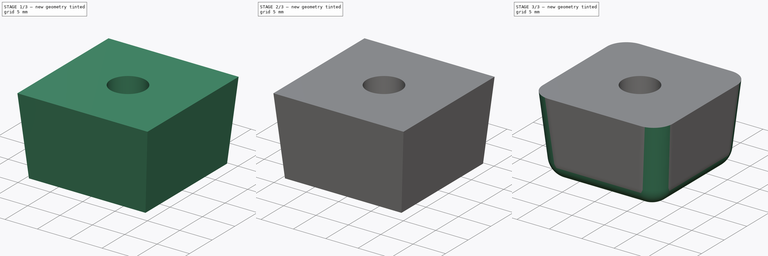
[diagram: build sequence overview — one tinted view per stage of 3, left to right]
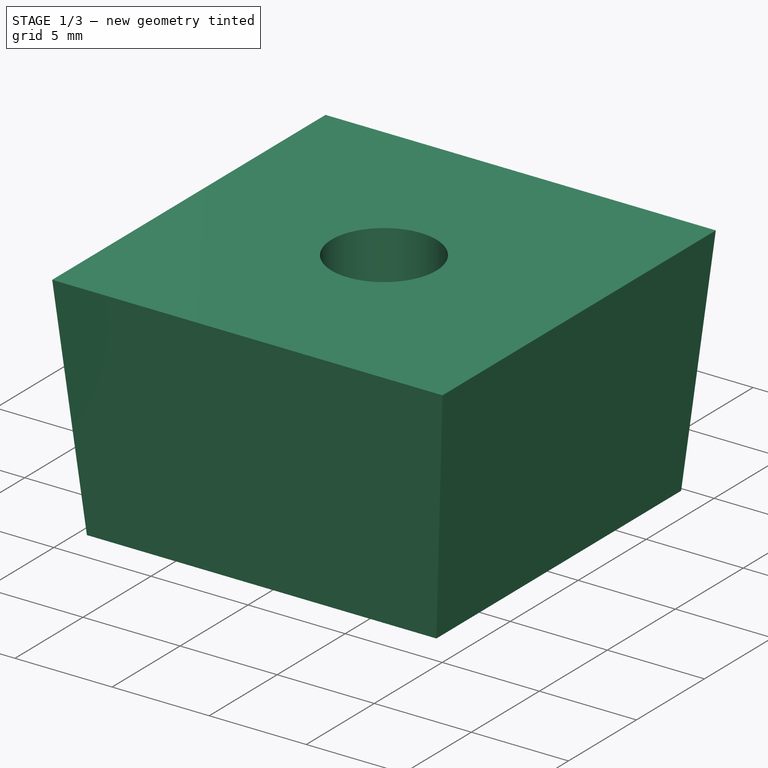
[diagram: stage 1 of 3 — iso view after this stage's code; geometry added in this stage tinted green]
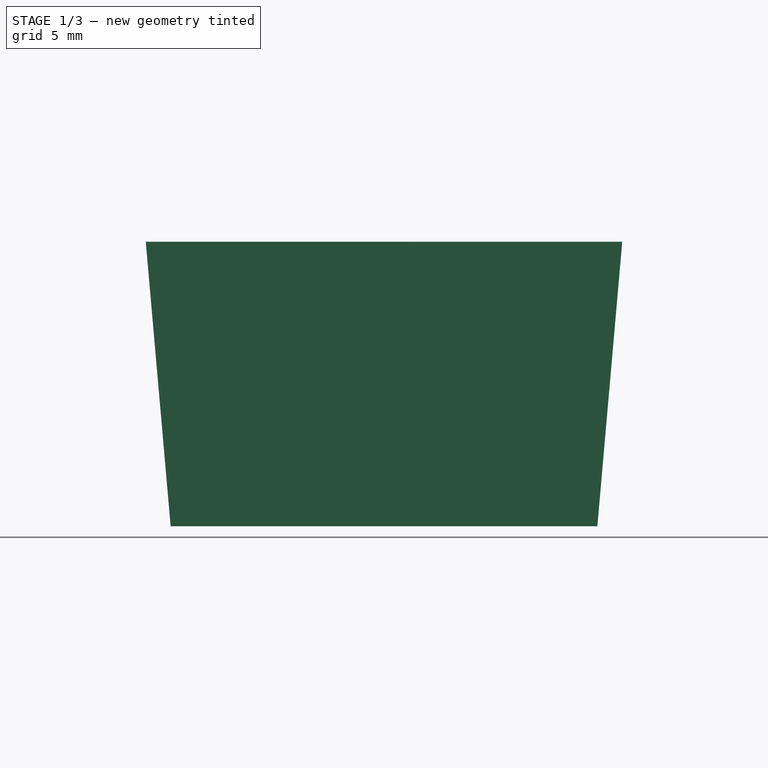
[diagram: stage 1 of 3 — front view after this stage's code; geometry added in this stage tinted green]
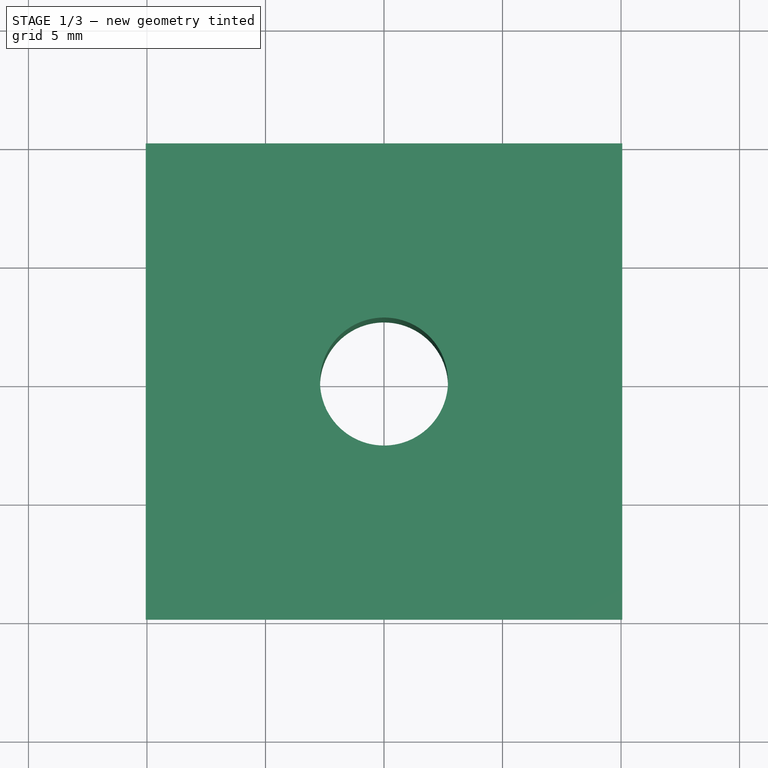
[diagram: stage 1 of 3 — top view after this stage's code; geometry added in this stage tinted green]
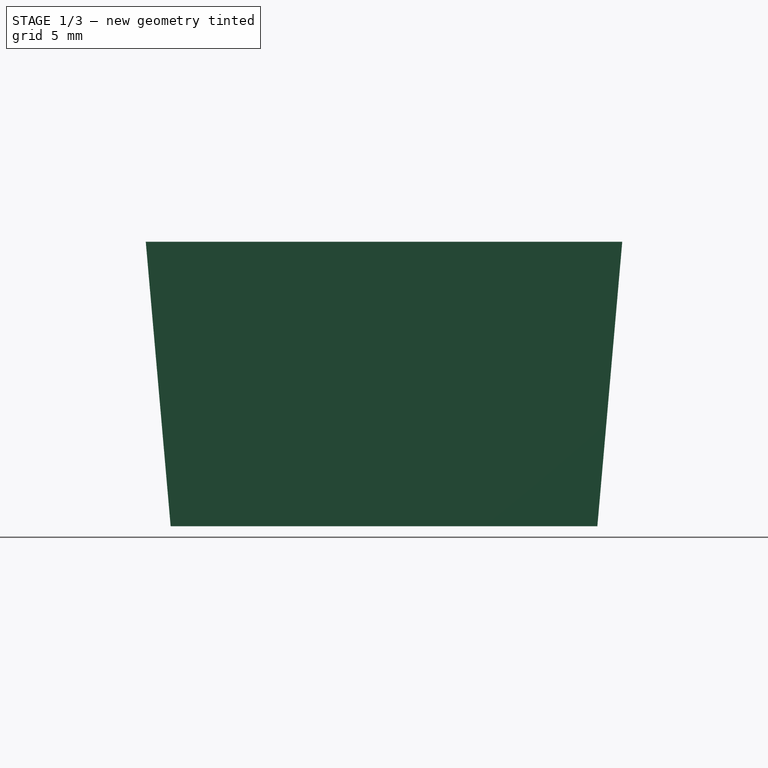
[diagram: stage 1 of 3 — right view after this stage's code; geometry added in this stage tinted green]
FCSTD DOCUMENT  (FreeCAD 0.18R16131 (Git))
Label: _Damper-Foot
License: CreativeCommons Attribution
LicenseURL: http://creativecommons.org/licenses/by/4.0/
objects: Sketcher::SketchObject×2, PartDesign::Pad×1, PartDesign::Draft×1, PartDesign::Pocket×1, PartDesign::Fillet×1, PartDesign::Chamfer×1, PartDesign::Body×1
note: 10 computed .brp shape members not serialized (recipe doc carries the construction recipe); baked Part::Feature solids carry a one-line shape summary decoded from their .brp

FEATURE [Sketcher::SketchObject] Sketch
  MapMode = 5
  Support = -> [XY_Plane]
  sketch-geometry (6):
    g0: LineSegment StartX=-9 StartY=9 StartZ=0 EndX=9 EndY=9 EndZ=0
    g1: LineSegment StartX=9 StartY=9 StartZ=0 EndX=9 EndY=-9 EndZ=0
    g2: LineSegment StartX=9 StartY=-9 StartZ=0 EndX=-9 EndY=-9 EndZ=0
    g3: LineSegment StartX=-9 StartY=-9 StartZ=0 EndX=-9 EndY=9 EndZ=0
    g4: Circle CenterX=0 CenterY=0 CenterZ=0 NormalX=0 NormalY=0 NormalZ=1 AngleXU=0 Radius=2.7
    g5: GeomPoint X=2.7 Y=0 Z=0
  constraints (15):
    c: Coincident(g0,g1)
    c: Coincident(g1,g2)
    c: Coincident(g2,g3)
    c: Coincident(g3,g0)
    c: Horizontal(g0)
    c: Horizontal(g2)
    c: Vertical(g1)
    c: Vertical(g3)
    c: Coincident(g4,g-1)
    c: Diameter(g4) = 5.4
    c: PointOnObject(g5,g-1)
    c: PointOnObject(g5,g4)
    c: Symmetric(g2,g0,g4)
    c: Equal(g0,g3)
    c: DistanceY(g3,g3) = 18
FEATURE [PartDesign::Pad] Pad
  Length = 12
  Length2 = 100
  Profile = -> Sketch
  Type = 0
FEATURE [PartDesign::Draft] Draft
  Angle = 5
  Base = -> Pad [Face3,Face2,Face1,Face4]
  BaseFeature = -> Pad
  NeutralPlane = -> Pad [Face6]
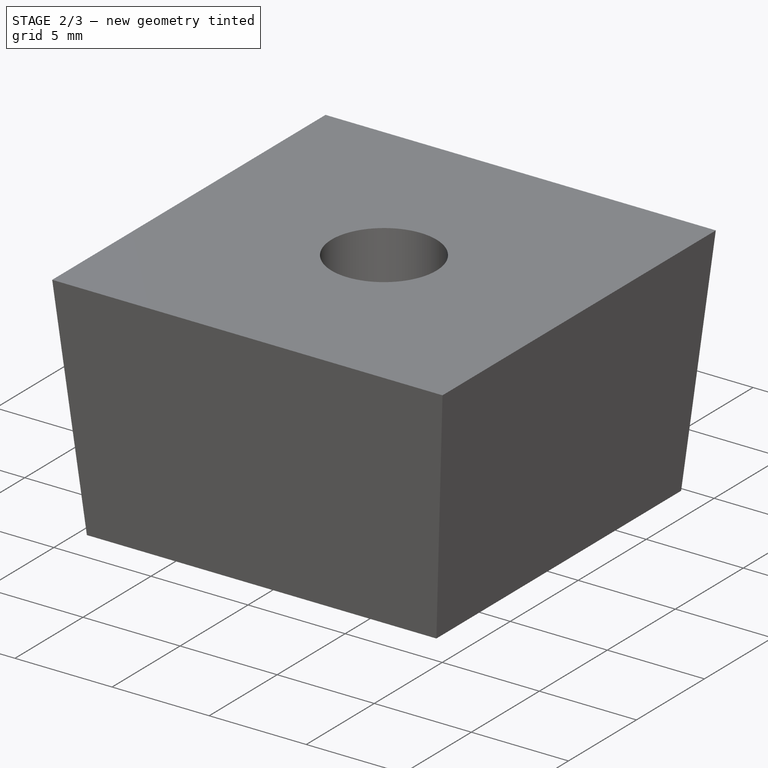
[diagram: stage 2 of 3 — iso view after this stage's code; geometry added in this stage tinted green]
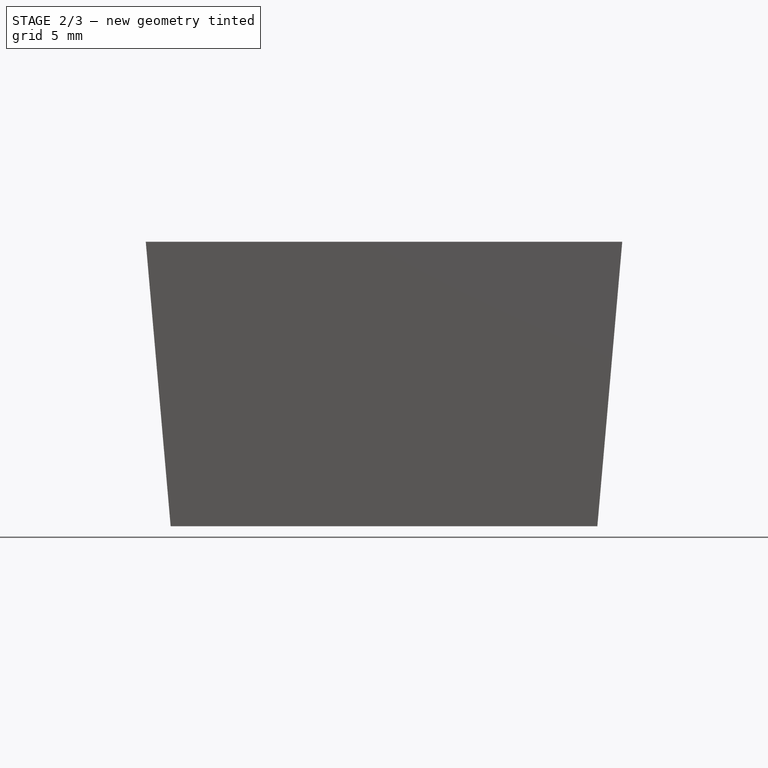
[diagram: stage 2 of 3 — front view after this stage's code; geometry added in this stage tinted green]
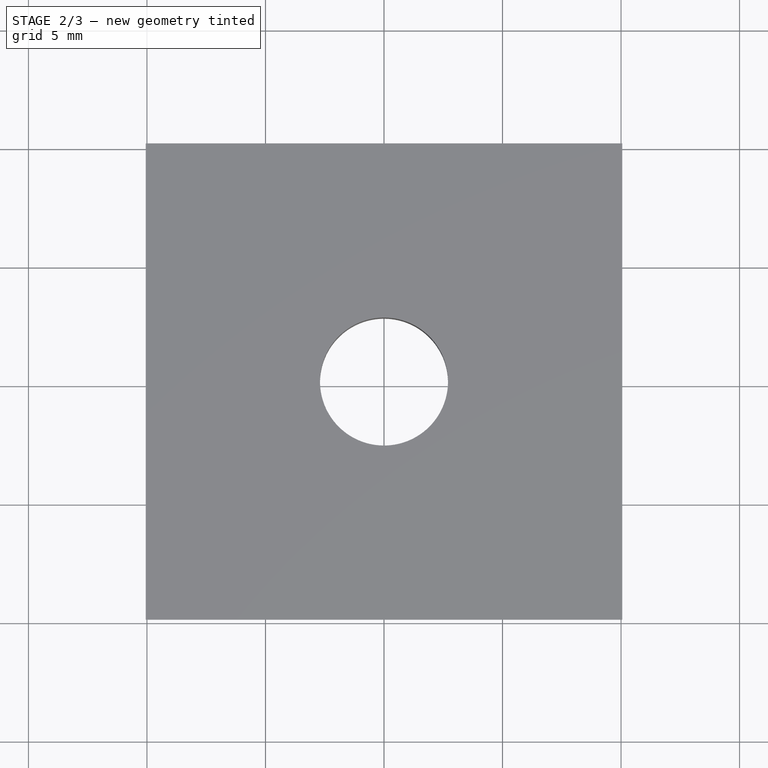
[diagram: stage 2 of 3 — top view after this stage's code; geometry added in this stage tinted green]
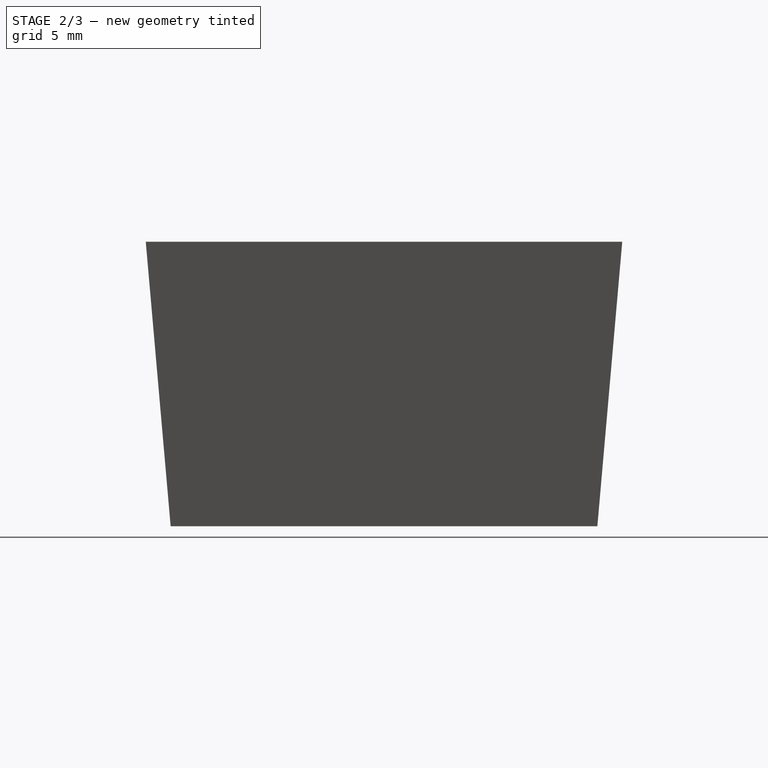
[diagram: stage 2 of 3 — right view after this stage's code; geometry added in this stage tinted green]
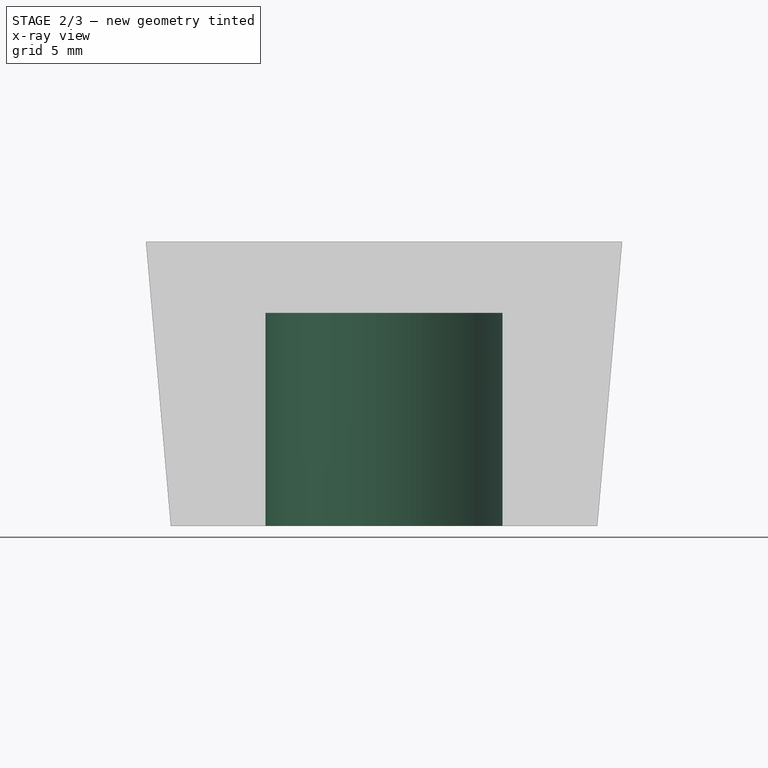
[diagram: stage 2 of 3 — x-ray composite at the front view; earlier geometry ghosted, this stage's added geometry solid]
FEATURE [Sketcher::SketchObject] Sketch001
  MapMode = 5
  Placement = pos=(0,0,0) rot=(1,0,0;3.14159rad)
  Support = -> [Draft]
  sketch-geometry (1):
    g0: Circle CenterX=0 CenterY=0 CenterZ=0 NormalX=0 NormalY=0 NormalZ=1 AngleXU=0 Radius=5
  constraints (2):
    c: Coincident(g0,g-1)
    c: Diameter(g0) = 10
FEATURE [PartDesign::Pocket] Pocket
  BaseFeature = -> Draft
  Length = 9
  Length2 = 100
  Profile = -> Sketch001
  Type = 0
  expr: Length = Pad.Length - 3mm
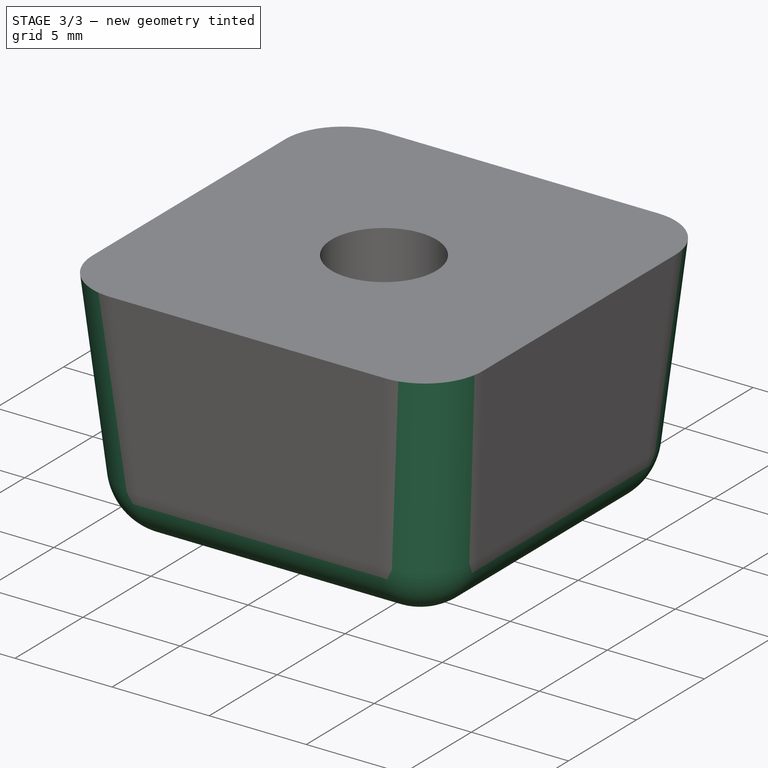
[diagram: stage 3 of 3 — iso view after this stage's code; geometry added in this stage tinted green]
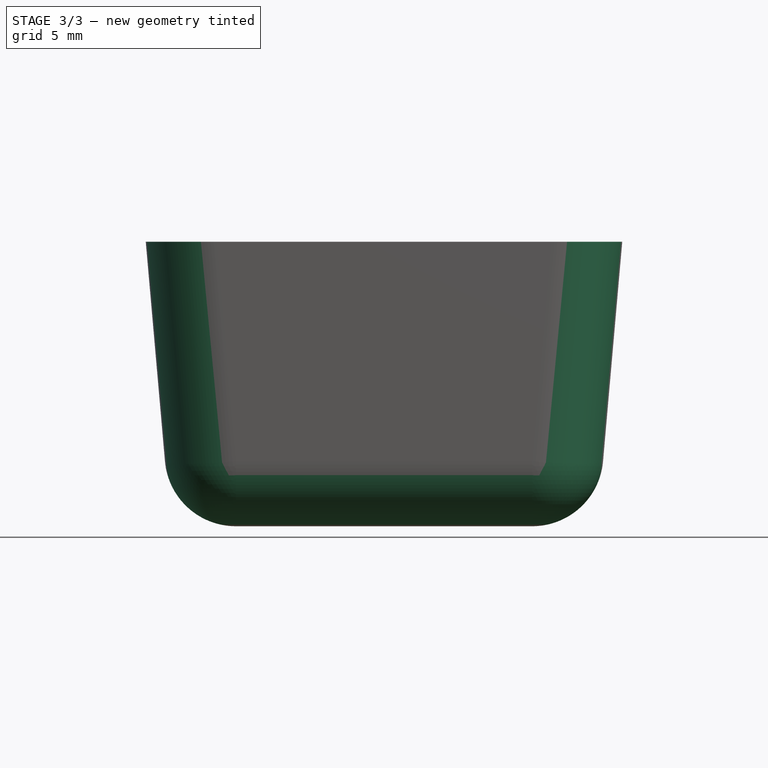
[diagram: stage 3 of 3 — front view after this stage's code; geometry added in this stage tinted green]
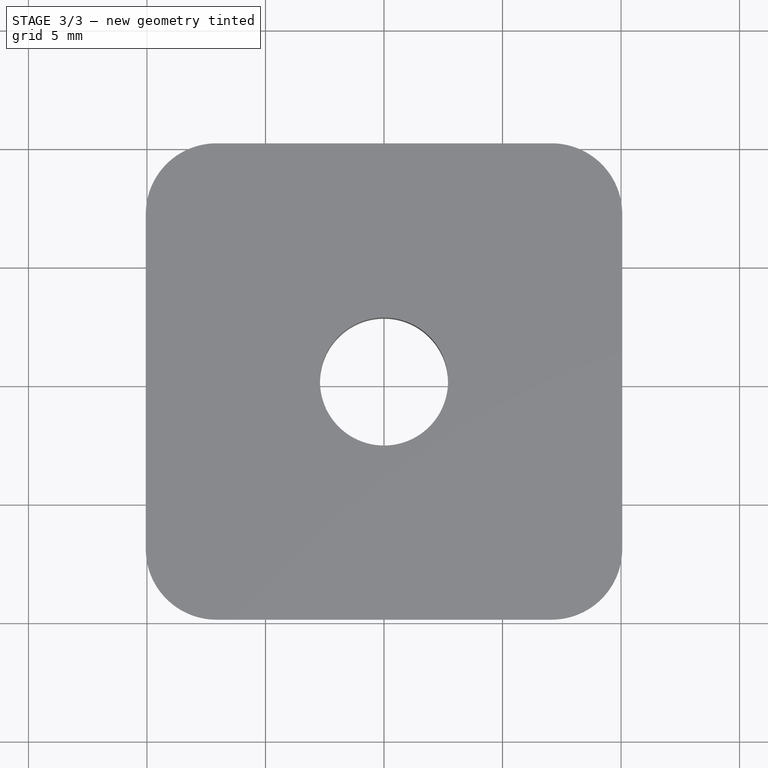
[diagram: stage 3 of 3 — top view after this stage's code; geometry added in this stage tinted green]
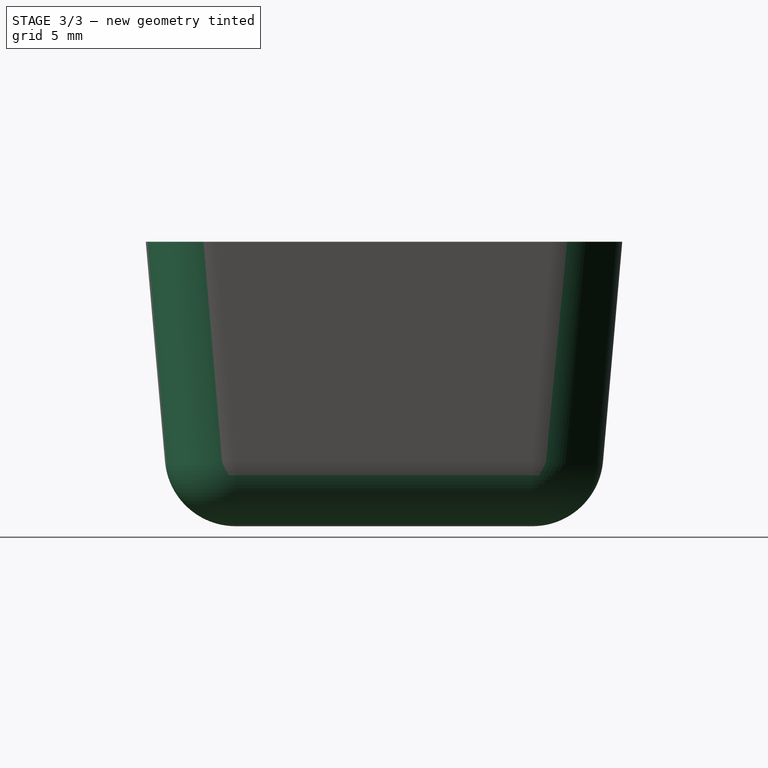
[diagram: stage 3 of 3 — right view after this stage's code; geometry added in this stage tinted green]
FEATURE [PartDesign::Fillet] Fillet
  Base = -> Pocket [Edge2,Edge1,Edge5,Edge8,Edge9,Edge11,Edge6,Edge3]
  BaseFeature = -> Pocket
  Radius = 3
FEATURE [PartDesign::Chamfer] Chamfer
  Base = -> Fillet [Edge38]
  BaseFeature = -> Fillet
  Size = 0.6
FEATURE [PartDesign::Body] Body  label="damper-foot"
  Group = -> [Sketch,Pad,Draft,Sketch001,Pocket,Fillet,Chamfer]
  Origin = -> Origin
  Tip = -> Chamfer
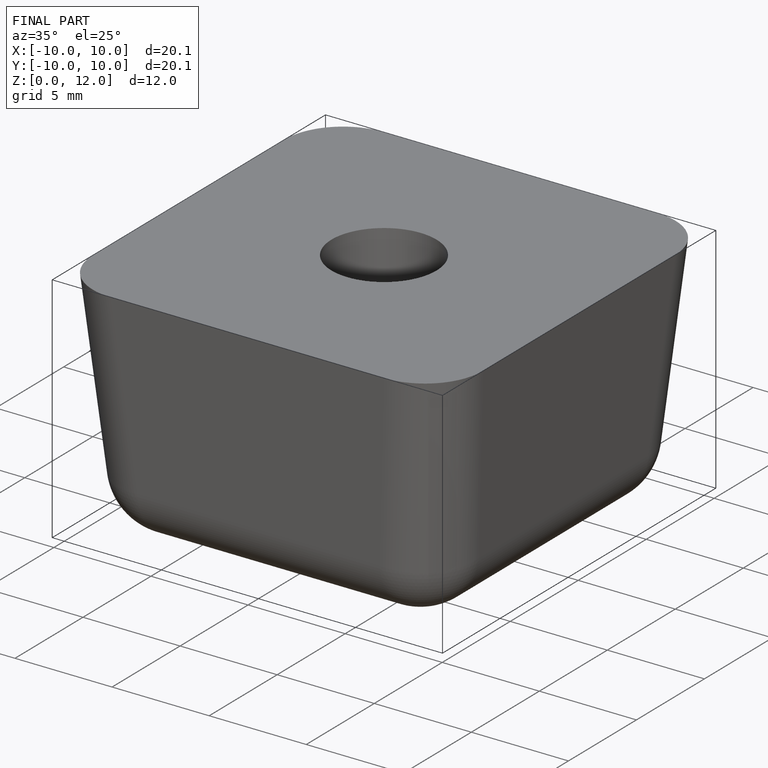
[diagram: finished part — iso view with bounding-box wireframe]
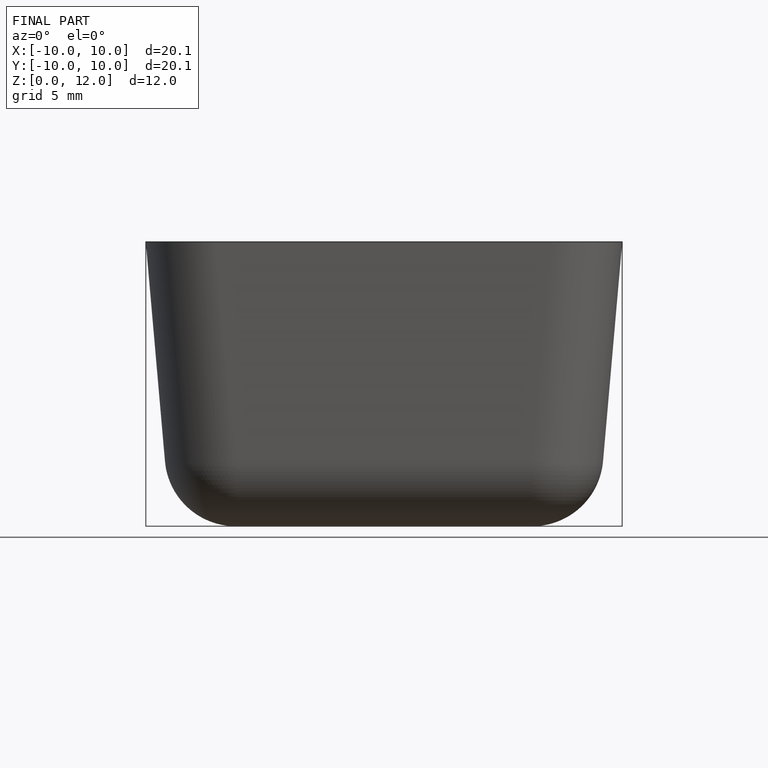
[diagram: finished part — front view with bounding-box wireframe]
